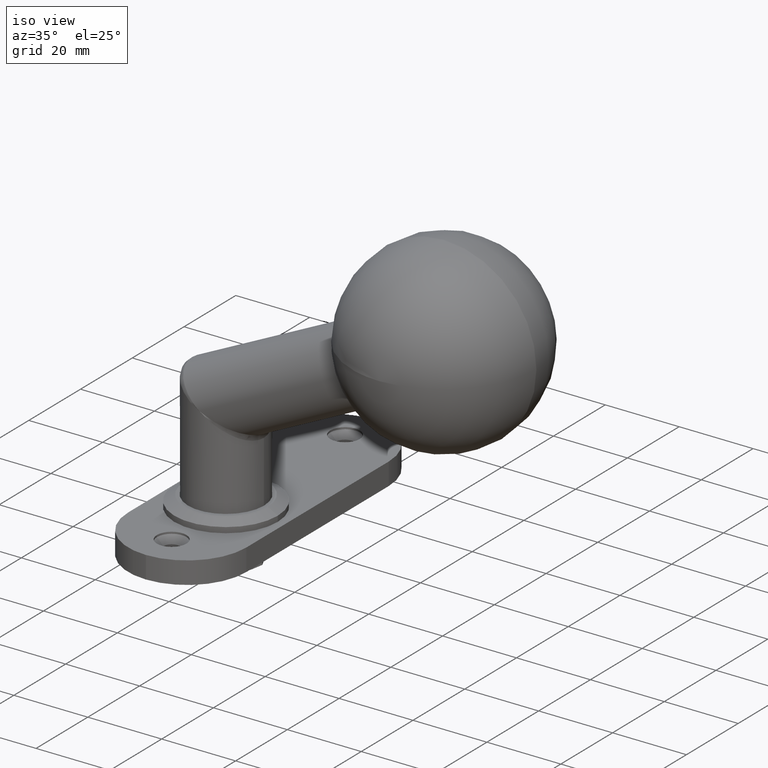
[diagram: clean part render]
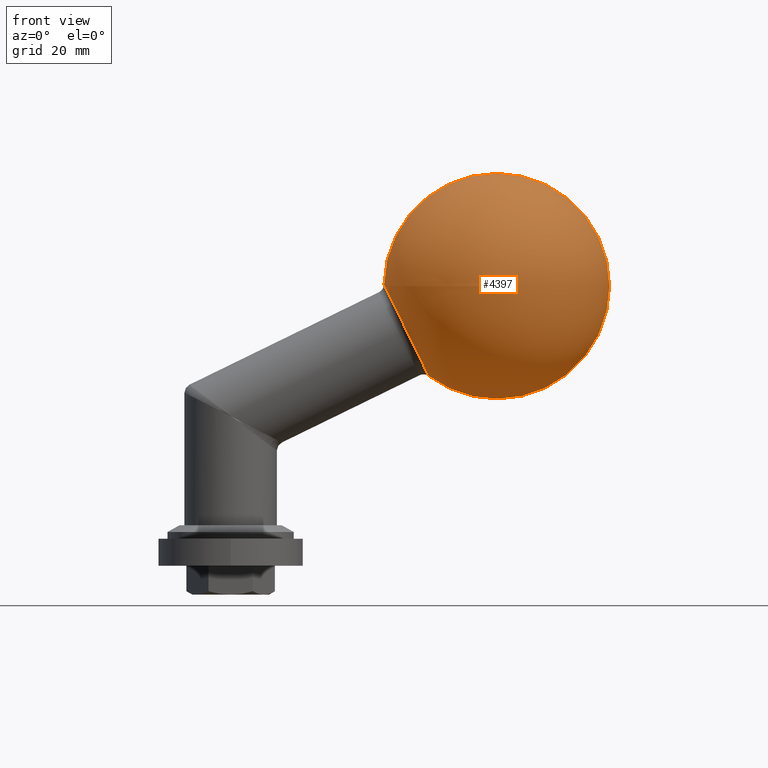
[diagram: tour spotlight — one face highlighted and labeled with its STEP entity id]
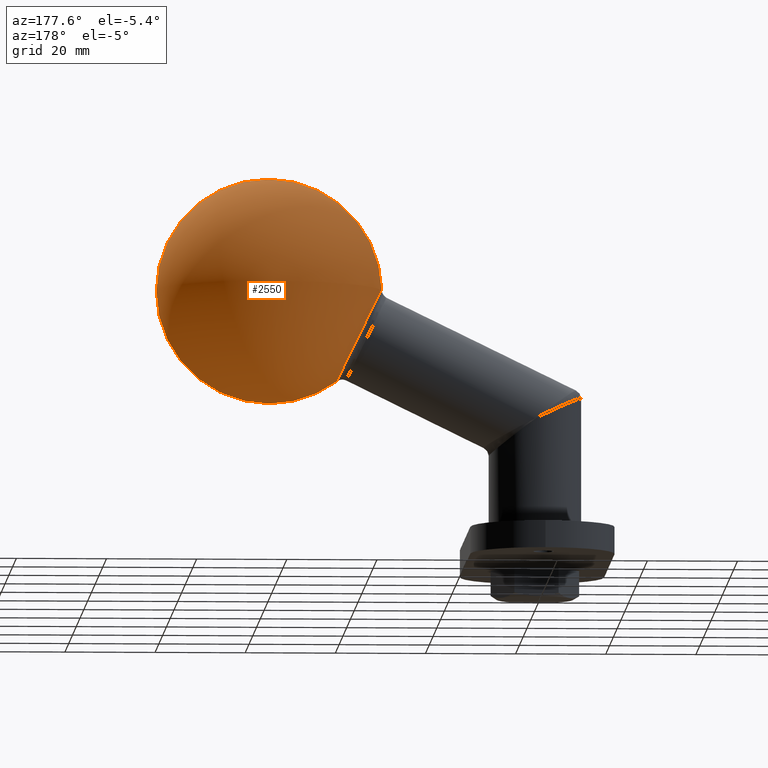
[diagram: tour spotlight — one face highlighted and labeled with its STEP entity id]
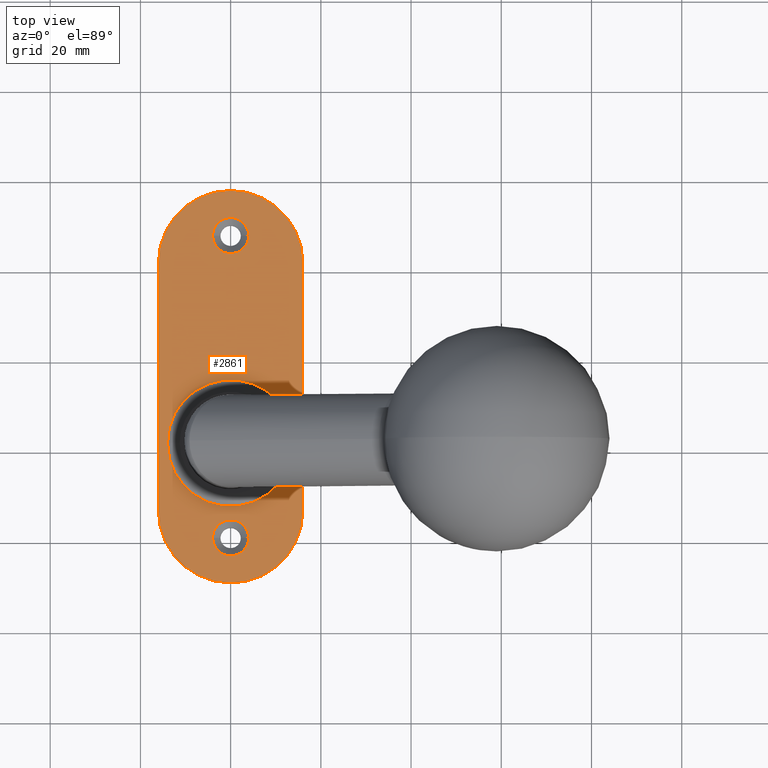
[diagram: tour spotlight — one face highlighted and labeled with its STEP entity id]
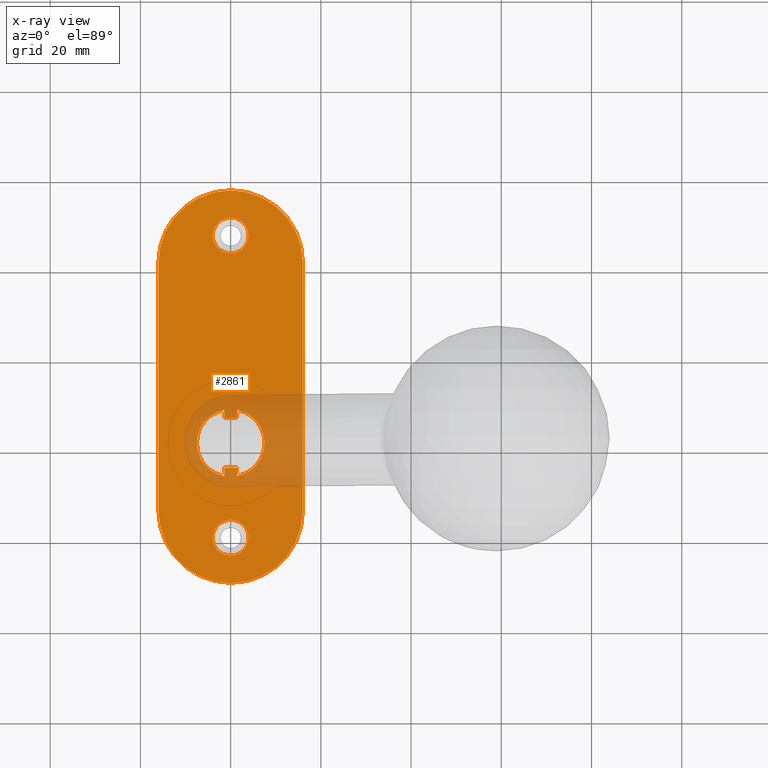
[diagram: x-ray of the same camera — body ghosted, this tour face saturated]
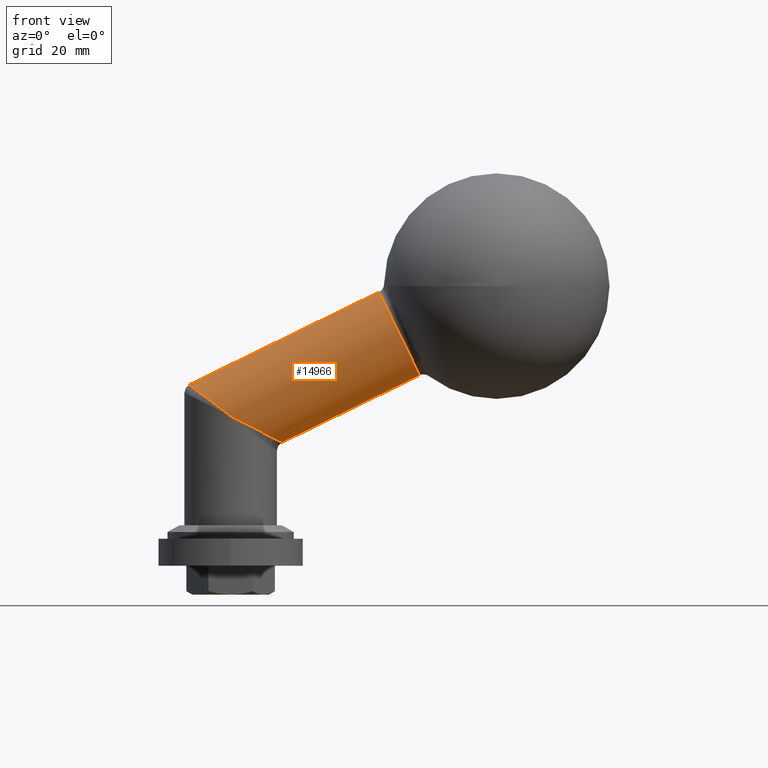
[diagram: tour spotlight — one face highlighted and labeled with its STEP entity id]
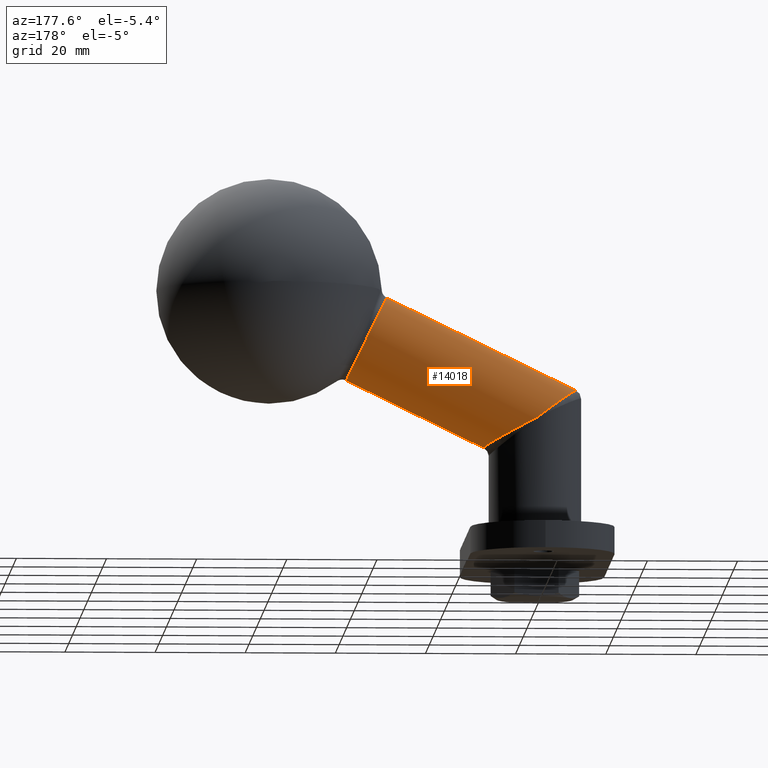
[diagram: tour spotlight — one face highlighted and labeled with its STEP entity id]
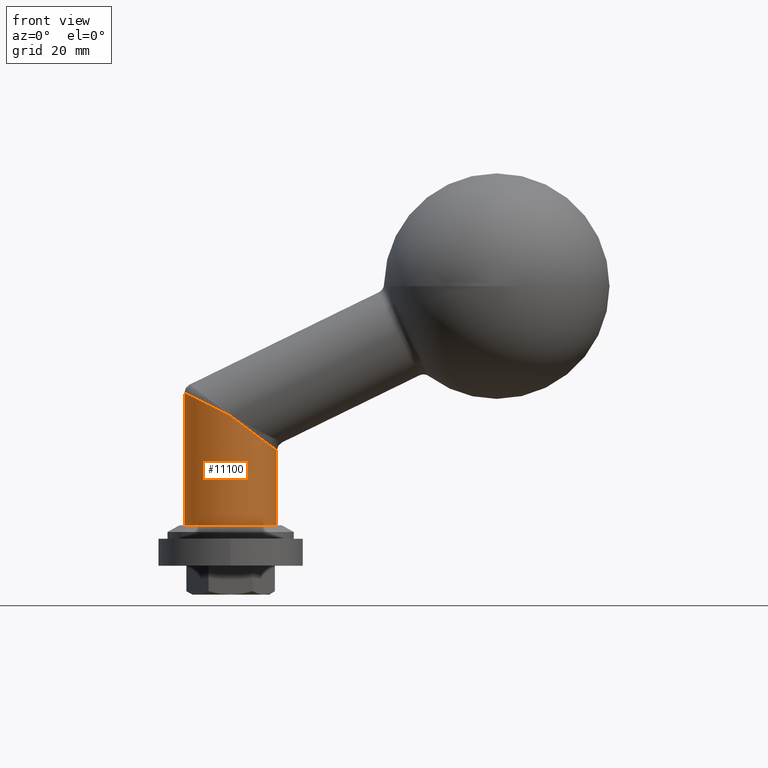
[diagram: tour spotlight — one face highlighted and labeled with its STEP entity id]
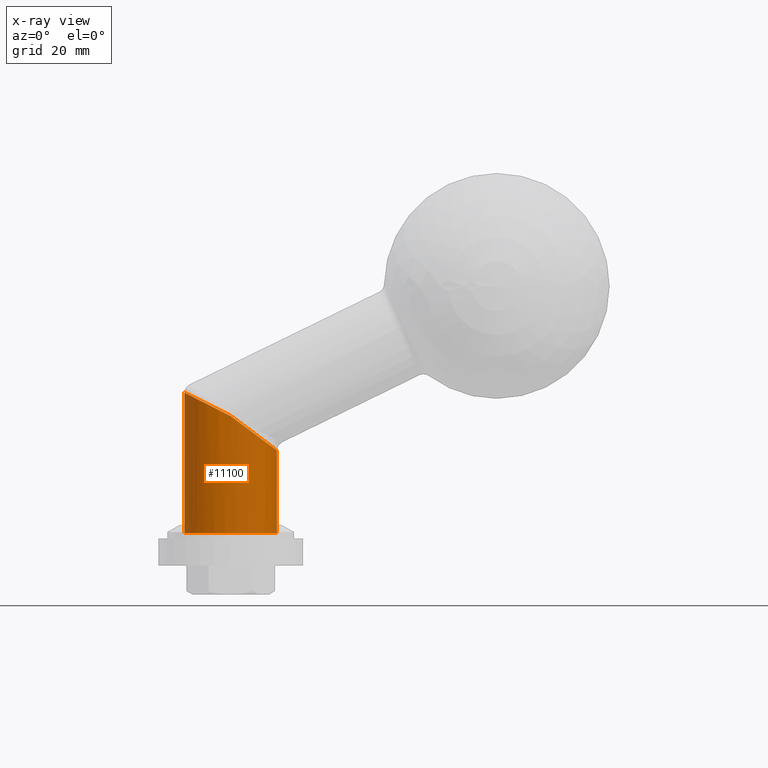
[diagram: x-ray of the same camera — body ghosted, this tour face saturated]
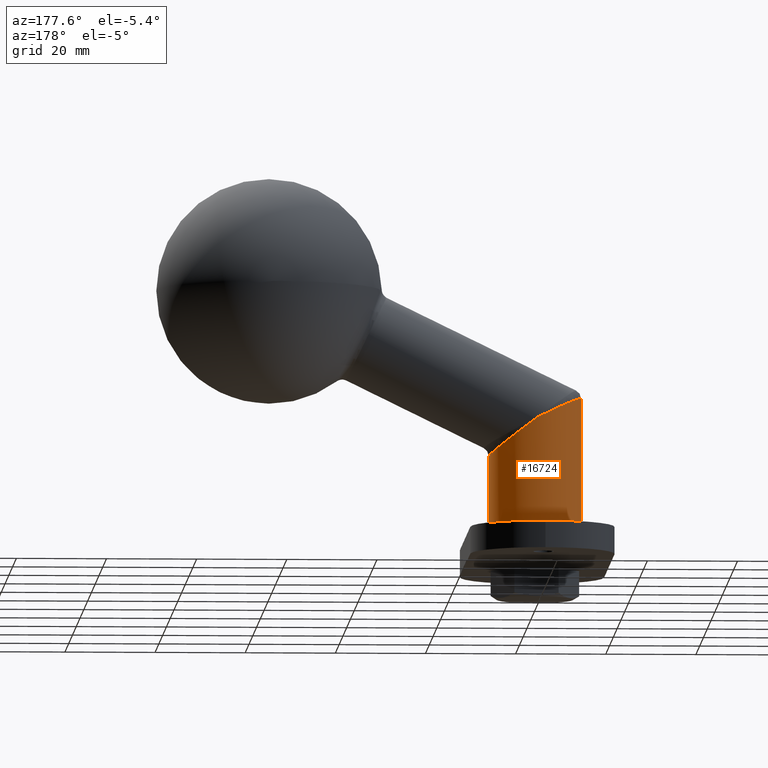
[diagram: tour spotlight — one face highlighted and labeled with its STEP entity id]
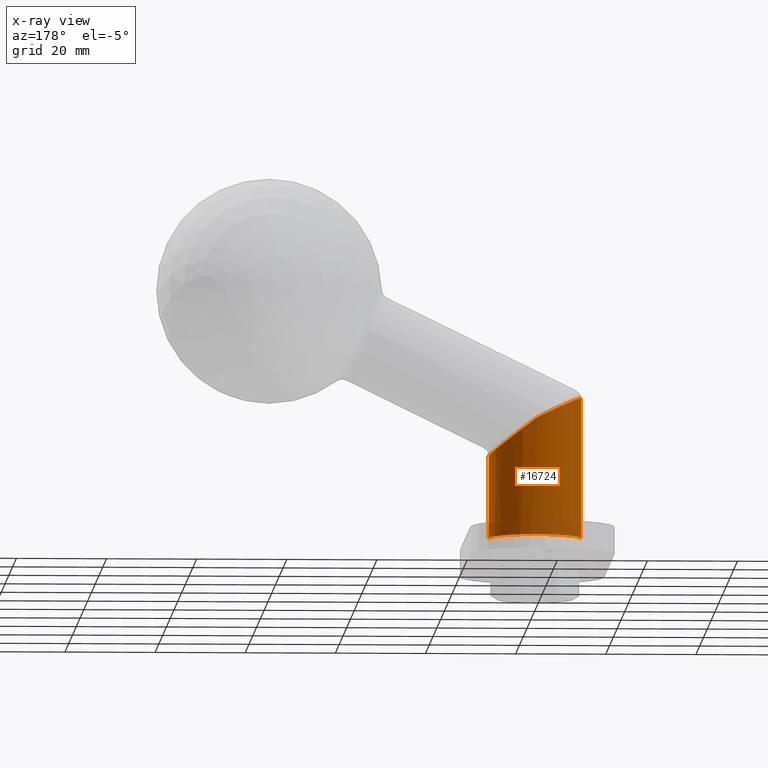
[diagram: x-ray of the same camera — body ghosted, this tour face saturated]
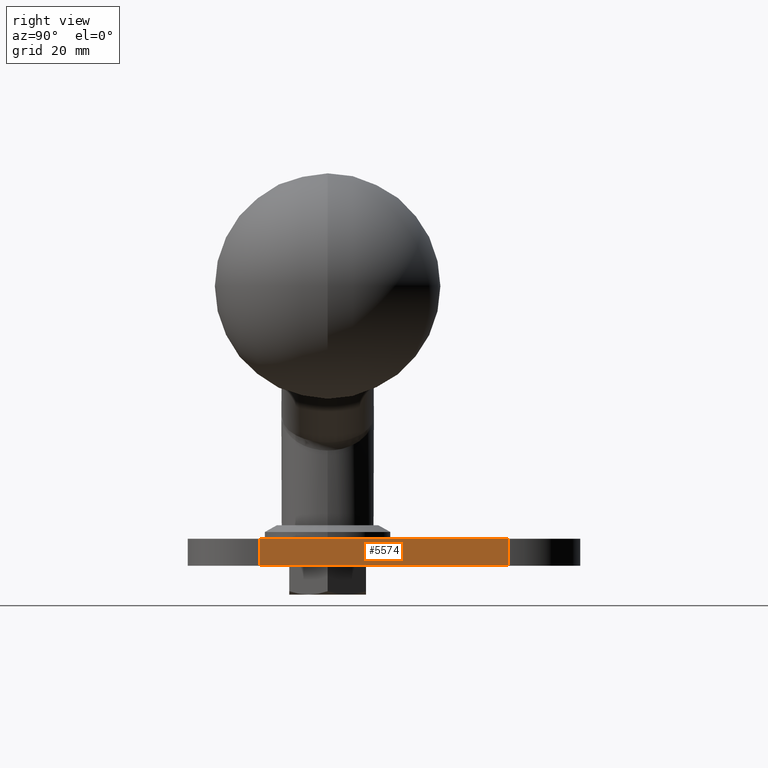
[diagram: tour spotlight — one face highlighted and labeled with its STEP entity id]
A machine part: a face-by-face anatomy tour. The part has 350 B-rep faces; the first image is the clean iso view, then the 8 largest visible faces are spotlighted one at a time (largest first), each with its STEP entity span.

Face 1 — front view, entity #4397. In plain terms, the highlighted spherical surface has radius 25 mm.
Definition (entity closure, byte-faithful):
#194 = CIRCLE ( 'NONE', #13611, 24.99999999999998579 ) ;
#1112 = CARTESIAN_POINT ( 'NONE',  ( 59.00000000000000711, 0.000000000000000000, 54.79999999999999716 ) ) ;
#1230 = DIRECTION ( 'NONE',  ( 0.000000000000000000, 1.000000000000000000, 0.000000000000000000 ) ) ;
#1425 = AXIS2_PLACEMENT_3D ( 'NONE', #7741, #4943, #11394 ) ;
#1689 = DIRECTION ( 'NONE',  ( 0.000000000000000000, 0.000000000000000000, 1.000000000000000000 ) ) ;
#1690 = FACE_OUTER_BOUND ( 'NONE', #11851, .T. ) ;
#2111 = SPHERICAL_SURFACE ( 'NONE', #1425, 24.99999999999998579 ) ;
#2964 = ORIENTED_EDGE ( 'NONE', *, *, #7785, .T. ) ;
#3845 = EDGE_CURVE ( 'NONE', #15773, #10940, #6040, .T. ) ;
#4173 = AXIS2_PLACEMENT_3D ( 'NONE', #6341, #14240, #7668 ) ;
#4244 = VERTEX_POINT ( 'NONE', #10042 ) ;
#4373 = CARTESIAN_POINT ( 'NONE',  ( 59.00000000000000711, 0.000000000000000000, 29.80000000000000782 ) ) ;
#4397 = ADVANCED_FACE ( 'NONE', ( #1690 ), #2111, .T. ) ;
#4663 = ORIENTED_EDGE ( 'NONE', *, *, #3845, .F. ) ;
#4943 = DIRECTION ( 'NONE',  ( -0.000000000000000000, -1.000000000000000000, 0.000000000000000000 ) ) ;
#5289 = CIRCLE ( 'NONE', #4173, 11.34259259259259878 ) ;
#5543 = DIRECTION ( 'NONE',  ( 0.000000000000000000, 1.000000000000000000, 0.000000000000000000 ) ) ;
#5580 = DIRECTION ( 'NONE',  ( 1.000000000000000000, -1.224646799147353207E-16, 0.000000000000000000 ) ) ;
#5654 = CARTESIAN_POINT ( 'NONE',  ( 43.95469740697900818, 0.000000000000000000, 34.83405725029655287 ) ) ;
#6040 = CIRCLE ( 'NONE', #8715, 24.99999999999998579 ) ;
#6341 = CARTESIAN_POINT ( 'NONE',  ( 38.97911390795321296, 0.000000000000000000, 45.02709289066191189 ) ) ;
#7134 = CIRCLE ( 'NONE', #11898, 24.99999999999998579 ) ;
#7668 = DIRECTION ( 'NONE',  ( 0.4386636880773769342, 0.000000000000000000, -0.8986513054362931241 ) ) ;
#7741 = CARTESIAN_POINT ( 'NONE',  ( 59.00000000000000711, 0.000000000000000000, 54.79999999999999716 ) ) ;
#7785 = EDGE_CURVE ( 'NONE', #16257, #10940, #5289, .T. ) ;
#8715 = AXIS2_PLACEMENT_3D ( 'NONE', #12260, #5543, #1689 ) ;
#9639 = CARTESIAN_POINT ( 'NONE',  ( 59.00000000000000711, 0.000000000000000000, 54.79999999999999716 ) ) ;
#10042 = CARTESIAN_POINT ( 'NONE',  ( 59.00000000000000711, 0.000000000000000000, 79.79999999999998295 ) ) ;
#10244 = ORIENTED_EDGE ( 'NONE', *, *, #14664, .F. ) ;
#10327 = DIRECTION ( 'NONE',  ( 0.000000000000000000, 0.000000000000000000, 1.000000000000000000 ) ) ;
#10716 = DIRECTION ( 'NONE',  ( -1.224646799147353207E-16, -1.000000000000000000, -0.000000000000000000 ) ) ;
#10940 = VERTEX_POINT ( 'NONE', #5654 ) ;
#11023 = EDGE_CURVE ( 'NONE', #15773, #4244, #194, .T. ) ;
#11394 = DIRECTION ( 'NONE',  ( -1.000000000000000000, 0.000000000000000000, 0.000000000000000000 ) ) ;
#11851 = EDGE_LOOP ( 'NONE', ( #4663, #16239, #10244, #2964 ) ) ;
#11898 = AXIS2_PLACEMENT_3D ( 'NONE', #1112, #1230, #10327 ) ;
#12260 = CARTESIAN_POINT ( 'NONE',  ( 59.00000000000000711, 0.000000000000000000, 54.79999999999999716 ) ) ;
#13611 = AXIS2_PLACEMENT_3D ( 'NONE', #9639, #10716, #5580 ) ;
#14240 = DIRECTION ( 'NONE',  ( 0.8986513054362933461, -0.000000000000000000, 0.4386636880773767677 ) ) ;
#14664 = EDGE_CURVE ( 'NONE', #16257, #4244, #7134, .T. ) ;
#14748 = CARTESIAN_POINT ( 'NONE',  ( 34.00353040892741774, 0.000000000000000000, 55.22012853102725671 ) ) ;
#15773 = VERTEX_POINT ( 'NONE', #4373 ) ;
#16239 = ORIENTED_EDGE ( 'NONE', *, *, #11023, .T. ) ;
#16257 = VERTEX_POINT ( 'NONE', #14748 ) ;

Face 2 — auxiliary view, entity #2550. In plain terms, the highlighted spherical surface has radius 25 mm.
Definition (entity closure, byte-faithful):
#179 = DIRECTION ( 'NONE',  ( 0.8986513054362933461, -0.000000000000000000, 0.4386636880773767677 ) ) ;
#194 = CIRCLE ( 'NONE', #13611, 24.99999999999998579 ) ;
#1112 = CARTESIAN_POINT ( 'NONE',  ( 59.00000000000000711, 0.000000000000000000, 54.79999999999999716 ) ) ;
#1230 = DIRECTION ( 'NONE',  ( 0.000000000000000000, 1.000000000000000000, 0.000000000000000000 ) ) ;
#1522 = DIRECTION ( 'NONE',  ( -0.000000000000000000, -1.000000000000000000, 0.000000000000000000 ) ) ;
#1689 = DIRECTION ( 'NONE',  ( 0.000000000000000000, 0.000000000000000000, 1.000000000000000000 ) ) ;
#2550 = ADVANCED_FACE ( 'NONE', ( #14632 ), #2594, .T. ) ;
#2594 = SPHERICAL_SURFACE ( 'NONE', #9226, 24.99999999999998579 ) ;
#2758 = EDGE_LOOP ( 'NONE', ( #16451, #10847, #5690, #3062 ) ) ;
#3062 = ORIENTED_EDGE ( 'NONE', *, *, #14664, .T. ) ;
#3845 = EDGE_CURVE ( 'NONE', #15773, #10940, #6040, .T. ) ;
#4244 = VERTEX_POINT ( 'NONE', #10042 ) ;
#4373 = CARTESIAN_POINT ( 'NONE',  ( 59.00000000000000711, 0.000000000000000000, 29.80000000000000782 ) ) ;
#5543 = DIRECTION ( 'NONE',  ( 0.000000000000000000, 1.000000000000000000, 0.000000000000000000 ) ) ;
#5580 = DIRECTION ( 'NONE',  ( 1.000000000000000000, -1.224646799147353207E-16, 0.000000000000000000 ) ) ;
#5654 = CARTESIAN_POINT ( 'NONE',  ( 43.95469740697900818, 0.000000000000000000, 34.83405725029655287 ) ) ;
#5690 = ORIENTED_EDGE ( 'NONE', *, *, #11386, .T. ) ;
#6040 = CIRCLE ( 'NONE', #8715, 24.99999999999998579 ) ;
#6630 = DIRECTION ( 'NONE',  ( -1.000000000000000000, 0.000000000000000000, 0.000000000000000000 ) ) ;
#7134 = CIRCLE ( 'NONE', #11898, 24.99999999999998579 ) ;
#7985 = CARTESIAN_POINT ( 'NONE',  ( 38.97911390795321296, 0.000000000000000000, 45.02709289066191189 ) ) ;
#8715 = AXIS2_PLACEMENT_3D ( 'NONE', #12260, #5543, #1689 ) ;
#9226 = AXIS2_PLACEMENT_3D ( 'NONE', #9302, #1522, #6630 ) ;
#9302 = CARTESIAN_POINT ( 'NONE',  ( 59.00000000000000711, 0.000000000000000000, 54.79999999999999716 ) ) ;
#9639 = CARTESIAN_POINT ( 'NONE',  ( 59.00000000000000711, 0.000000000000000000, 54.79999999999999716 ) ) ;
#9748 = CIRCLE ( 'NONE', #16659, 11.34259259259259878 ) ;
#10042 = CARTESIAN_POINT ( 'NONE',  ( 59.00000000000000711, 0.000000000000000000, 79.79999999999998295 ) ) ;
#10327 = DIRECTION ( 'NONE',  ( 0.000000000000000000, 0.000000000000000000, 1.000000000000000000 ) ) ;
#10599 = DIRECTION ( 'NONE',  ( 0.4386636880773769342, 0.000000000000000000, -0.8986513054362931241 ) ) ;
#10716 = DIRECTION ( 'NONE',  ( -1.224646799147353207E-16, -1.000000000000000000, -0.000000000000000000 ) ) ;
#10847 = ORIENTED_EDGE ( 'NONE', *, *, #3845, .T. ) ;
#10940 = VERTEX_POINT ( 'NONE', #5654 ) ;
#11023 = EDGE_CURVE ( 'NONE', #15773, #4244, #194, .T. ) ;
#11386 = EDGE_CURVE ( 'NONE', #10940, #16257, #9748, .T. ) ;
#11898 = AXIS2_PLACEMENT_3D ( 'NONE', #1112, #1230, #10327 ) ;
#12260 = CARTESIAN_POINT ( 'NONE',  ( 59.00000000000000711, 0.000000000000000000, 54.79999999999999716 ) ) ;
#13611 = AXIS2_PLACEMENT_3D ( 'NONE', #9639, #10716, #5580 ) ;
#14632 = FACE_OUTER_BOUND ( 'NONE', #2758, .T. ) ;
#14664 = EDGE_CURVE ( 'NONE', #16257, #4244, #7134, .T. ) ;
#14748 = CARTESIAN_POINT ( 'NONE',  ( 34.00353040892741774, 0.000000000000000000, 55.22012853102725671 ) ) ;
#15773 = VERTEX_POINT ( 'NONE', #4373 ) ;
#16257 = VERTEX_POINT ( 'NONE', #14748 ) ;
#16451 = ORIENTED_EDGE ( 'NONE', *, *, #11023, .F. ) ;
#16659 = AXIS2_PLACEMENT_3D ( 'NONE', #7985, #179, #10599 ) ;

Face 3 — top view, entity #2861. An x-ray twin of the same camera follows (body ghosted, this face saturated) — the face is partly hidden behind the body. In plain terms, the highlighted planar face has unit normal (0, 0, 1).
Definition (entity closure, byte-faithful):
#19 = VERTEX_POINT ( 'NONE', #13959 ) ;
#133 = VERTEX_POINT ( 'NONE', #1330 ) ;
#301 = EDGE_CURVE ( 'NONE', #9153, #1197, #15295, .T. ) ;
#328 = CARTESIAN_POINT ( 'NONE',  ( -8.629137290756425438E-15, 62.00000000000000000, 6.000000000000000000 ) ) ;
#344 = CARTESIAN_POINT ( 'NONE',  ( -1.399999999999999023, 16.50000000000000711, 6.000000000000000000 ) ) ;
#347 = CARTESIAN_POINT ( 'NONE',  ( 3.469446951953614189E-15, 7.000000000000006217, 6.000000000000000000 ) ) ;
#569 = CIRCLE ( 'NONE', #7746, 16.00000000000000000 ) ;
#936 = AXIS2_PLACEMENT_3D ( 'NONE', #6383, #5144, #14224 ) ;
#1023 = VERTEX_POINT ( 'NONE', #4750 ) ;
#1066 = CIRCLE ( 'NONE', #12420, 7.500000000000000000 ) ;
#1084 = EDGE_CURVE ( 'NONE', #19, #15976, #13251, .T. ) ;
#1197 = VERTEX_POINT ( 'NONE', #7696 ) ;
#1314 = ORIENTED_EDGE ( 'NONE', *, *, #10482, .T. ) ;
#1330 = CARTESIAN_POINT ( 'NONE',  ( -4.000000000000000000, 1.000000000000001332, 6.000000000000000000 ) ) ;
#1346 = DIRECTION ( 'NONE',  ( -0.000000000000000000, 0.000000000000000000, 1.000000000000000000 ) ) ;
#1585 = DIRECTION ( 'NONE',  ( -0.000000000000000000, 0.000000000000000000, 1.000000000000000000 ) ) ;
#1680 = CARTESIAN_POINT ( 'NONE',  ( 0.000000000000000000, 1.000000000000000888, 6.000000000000000000 ) ) ;
#1737 = VECTOR ( 'NONE', #6177, 1000.000000000000000 ) ;
#1786 = CIRCLE ( 'NONE', #7155, 16.00000000000000000 ) ;
#1809 = CARTESIAN_POINT ( 'NONE',  ( -2.513125035709990180E-15, 7.000000000000006217, 6.000000000000000000 ) ) ;
#1861 = CARTESIAN_POINT ( 'NONE',  ( -16.00000000000001066, 78.00000000000000000, 6.000000000000000000 ) ) ;
#1963 = CARTESIAN_POINT ( 'NONE',  ( 0.000000000000000000, 0.000000000000000000, 6.000000000000000000 ) ) ;
#2042 = DIRECTION ( 'NONE',  ( -0.000000000000000000, -0.000000000000000000, 1.000000000000000000 ) ) ;
#2331 = EDGE_CURVE ( 'NONE', #2663, #3410, #3003, .T. ) ;
#2503 = AXIS2_PLACEMENT_3D ( 'NONE', #1963, #11093, #13726 ) ;
#2575 = LINE ( 'NONE', #13974, #1737 ) ;
#2631 = CARTESIAN_POINT ( 'NONE',  ( -6.938893903907228378E-15, 78.00000000000000000, 6.000000000000000000 ) ) ;
#2663 = VERTEX_POINT ( 'NONE', #10561 ) ;
#2727 = EDGE_CURVE ( 'NONE', #16777, #133, #10943, .T. ) ;
#2861 = ADVANCED_FACE ( 'NONE', ( #16454, #8686, #14430, #7697 ), #4591, .T. ) ;
#2991 = AXIS2_PLACEMENT_3D ( 'NONE', #9192, #1346, #11742 ) ;
#3003 = LINE ( 'NONE', #14662, #11797 ) ;
#3041 = VECTOR ( 'NONE', #13302, 1000.000000000000000 ) ;
#3088 = DIRECTION ( 'NONE',  ( 1.000000000000000000, 0.000000000000000000, 0.000000000000000000 ) ) ;
#3238 = ORIENTED_EDGE ( 'NONE', *, *, #6204, .F. ) ;
#3410 = VERTEX_POINT ( 'NONE', #12377 ) ;
#3417 = ORIENTED_EDGE ( 'NONE', *, *, #1084, .F. ) ;
#3511 = VERTEX_POINT ( 'NONE', #12893 ) ;
#3675 = ORIENTED_EDGE ( 'NONE', *, *, #15546, .T. ) ;
#3773 = DIRECTION ( 'NONE',  ( 1.000000000000000000, 0.000000000000000000, 0.000000000000000000 ) ) ;
#4317 = DIRECTION ( 'NONE',  ( 1.000000000000000000, 0.000000000000000000, 0.000000000000000000 ) ) ;
#4323 = CIRCLE ( 'NONE', #2991, 16.00000000000000000 ) ;
#4396 = CIRCLE ( 'NONE', #14097, 4.000000000000000000 ) ;
#4404 = CARTESIAN_POINT ( 'NONE',  ( -4.000000000000000000, 68.00000000000000000, 6.000000000000000000 ) ) ;
#4476 = CARTESIAN_POINT ( 'NONE',  ( 1.400000000000000577, 16.50000000000000711, 6.000000000000000000 ) ) ;
#4482 = VECTOR ( 'NONE', #13601, 1000.000000000000000 ) ;
#4554 = CARTESIAN_POINT ( 'NONE',  ( -16.00000000000000711, 62.00000000000000000, 6.000000000000000000 ) ) ;
#4591 = PLANE ( 'NONE',  #2503 ) ;
#4687 = CARTESIAN_POINT ( 'NONE',  ( 15.99999999999998934, 78.00000000000000000, 6.000000000000000000 ) ) ;
#4750 = CARTESIAN_POINT ( 'NONE',  ( 1.400000000000000577, 16.50000000000000711, 6.000000000000000000 ) ) ;
#4884 = DIRECTION ( 'NONE',  ( 1.000000000000000000, 0.000000000000000000, 0.000000000000000000 ) ) ;
#5055 = VERTEX_POINT ( 'NONE', #4554 ) ;
#5144 = DIRECTION ( 'NONE',  ( -0.000000000000000000, -0.000000000000000000, 1.000000000000000000 ) ) ;
#5298 = VERTEX_POINT ( 'NONE', #14145 ) ;
#5417 = DIRECTION ( 'NONE',  ( 1.000000000000000000, 0.000000000000000000, 0.000000000000000000 ) ) ;
#5425 = EDGE_CURVE ( 'NONE', #5427, #8310, #4323, .T. ) ;
#5427 = VERTEX_POINT ( 'NONE', #6576 ) ;
#5436 = ORIENTED_EDGE ( 'NONE', *, *, #5768, .F. ) ;
#5627 = AXIS2_PLACEMENT_3D ( 'NONE', #1680, #8219, #5417 ) ;
#5632 = ORIENTED_EDGE ( 'NONE', *, *, #13555, .T. ) ;
#5768 = EDGE_CURVE ( 'NONE', #5298, #1197, #1066, .T. ) ;
#6126 = DIRECTION ( 'NONE',  ( 0.000000000000000000, 0.000000000000000000, 1.000000000000000000 ) ) ;
#6177 = DIRECTION ( 'NONE',  ( 1.160707411203426691E-16, 1.000000000000000000, 0.000000000000000000 ) ) ;
#6204 = EDGE_CURVE ( 'NONE', #10711, #11024, #8991, .T. ) ;
#6220 = ORIENTED_EDGE ( 'NONE', *, *, #14228, .F. ) ;
#6383 = CARTESIAN_POINT ( 'NONE',  ( 0.000000000000000000, 68.00000000000000000, 6.000000000000000000 ) ) ;
#6486 = CARTESIAN_POINT ( 'NONE',  ( 1.399999999999999023, 27.50000000000000355, 6.000000000000000000 ) ) ;
#6576 = CARTESIAN_POINT ( 'NONE',  ( 15.99999999999999289, 62.00000000000000000, 6.000000000000000000 ) ) ;
#6647 = EDGE_CURVE ( 'NONE', #10151, #5427, #10005, .T. ) ;
#6715 = ORIENTED_EDGE ( 'NONE', *, *, #9631, .T. ) ;
#6862 = DIRECTION ( 'NONE',  ( 1.000000000000000000, 0.000000000000000000, 0.000000000000000000 ) ) ;
#7155 = AXIS2_PLACEMENT_3D ( 'NONE', #328, #1585, #6862 ) ;
#7157 = ORIENTED_EDGE ( 'NONE', *, *, #5425, .T. ) ;
#7353 = DIRECTION ( 'NONE',  ( 1.160707411203426691E-16, -1.000000000000000000, 0.000000000000000000 ) ) ;
#7696 = CARTESIAN_POINT ( 'NONE',  ( -1.400000000000003464, 14.63182519208454302, 6.000000000000000000 ) ) ;
#7697 = FACE_BOUND ( 'NONE', #15123, .T. ) ;
#7746 = AXIS2_PLACEMENT_3D ( 'NONE', #347, #9568, #3088 ) ;
#7894 = LINE ( 'NONE', #344, #16033 ) ;
#8088 = DIRECTION ( 'NONE',  ( 1.000000000000000000, 0.000000000000000000, 0.000000000000000000 ) ) ;
#8219 = DIRECTION ( 'NONE',  ( -0.000000000000000000, -0.000000000000000000, 1.000000000000000000 ) ) ;
#8310 = VERTEX_POINT ( 'NONE', #2631 ) ;
#8312 = ORIENTED_EDGE ( 'NONE', *, *, #15947, .F. ) ;
#8350 = VERTEX_POINT ( 'NONE', #6486 ) ;
#8435 = CARTESIAN_POINT ( 'NONE',  ( 4.000000000000000000, 1.000000000000000888, 6.000000000000000000 ) ) ;
#8686 = FACE_BOUND ( 'NONE', #12280, .T. ) ;
#8753 = ORIENTED_EDGE ( 'NONE', *, *, #13686, .T. ) ;
#8991 = CIRCLE ( 'NONE', #936, 4.000000000000000000 ) ;
#9035 = DIRECTION ( 'NONE',  ( 1.000000000000000000, 0.000000000000000000, 0.000000000000000000 ) ) ;
#9050 = CARTESIAN_POINT ( 'NONE',  ( -1.400000000000000799, 27.50000000000000355, 6.000000000000000000 ) ) ;
#9153 = VERTEX_POINT ( 'NONE', #11617 ) ;
#9192 = CARTESIAN_POINT ( 'NONE',  ( -6.938893903907228378E-15, 62.00000000000000000, 6.000000000000000000 ) ) ;
#9260 = ORIENTED_EDGE ( 'NONE', *, *, #301, .T. ) ;
#9438 = DIRECTION ( 'NONE',  ( -1.000000000000000000, -0.000000000000000000, -0.000000000000000000 ) ) ;
#9453 = EDGE_LOOP ( 'NONE', ( #7157, #6715, #9685, #3675, #12698, #12792 ) ) ;
#9464 = CIRCLE ( 'NONE', #16017, 4.000000000000000000 ) ;
#9568 = DIRECTION ( 'NONE',  ( -0.000000000000000000, 0.000000000000000000, 1.000000000000000000 ) ) ;
#9631 = EDGE_CURVE ( 'NONE', #8310, #5055, #1786, .T. ) ;
#9683 = VECTOR ( 'NONE', #10861, 1000.000000000000000 ) ;
#9685 = ORIENTED_EDGE ( 'NONE', *, *, #16276, .T. ) ;
#9841 = CARTESIAN_POINT ( 'NONE',  ( 0.000000000000000000, 1.000000000000000888, 6.000000000000000000 ) ) ;
#10005 = LINE ( 'NONE', #4687, #14121 ) ;
#10151 = VERTEX_POINT ( 'NONE', #14415 ) ;
#10365 = CARTESIAN_POINT ( 'NONE',  ( 0.000000000000000000, 22.00000000000000355, 6.000000000000000000 ) ) ;
#10482 = EDGE_CURVE ( 'NONE', #19, #1023, #11428, .T. ) ;
#10530 = VECTOR ( 'NONE', #3773, 1000.000000000000000 ) ;
#10561 = CARTESIAN_POINT ( 'NONE',  ( -1.400000000000001021, 29.36817480791546231, 6.000000000000000000 ) ) ;
#10571 = DIRECTION ( 'NONE',  ( 0.000000000000000000, 0.000000000000000000, 1.000000000000000000 ) ) ;
#10696 = LINE ( 'NONE', #1861, #9683 ) ;
#10711 = VERTEX_POINT ( 'NONE', #16202 ) ;
#10861 = DIRECTION ( 'NONE',  ( 1.112002228190260952E-16, -1.000000000000000000, 0.000000000000000000 ) ) ;
#10869 = ORIENTED_EDGE ( 'NONE', *, *, #16164, .T. ) ;
#10943 = CIRCLE ( 'NONE', #5627, 4.000000000000000000 ) ;
#11024 = VERTEX_POINT ( 'NONE', #4404 ) ;
#11093 = DIRECTION ( 'NONE',  ( -0.000000000000000000, 0.000000000000000000, 1.000000000000000000 ) ) ;
#11156 = DIRECTION ( 'NONE',  ( 1.000000000000000000, 0.000000000000000000, 0.000000000000000000 ) ) ;
#11178 = ORIENTED_EDGE ( 'NONE', *, *, #16706, .F. ) ;
#11219 = CARTESIAN_POINT ( 'NONE',  ( 1.399999999999999023, 29.36817480791546231, 6.000000000000000000 ) ) ;
#11428 = LINE ( 'NONE', #4476, #4482 ) ;
#11617 = CARTESIAN_POINT ( 'NONE',  ( -1.399999999999999023, 16.50000000000000711, 6.000000000000000000 ) ) ;
#11742 = DIRECTION ( 'NONE',  ( 1.000000000000000000, 0.000000000000000000, 0.000000000000000000 ) ) ;
#11788 = LINE ( 'NONE', #9050, #10530 ) ;
#11796 = ORIENTED_EDGE ( 'NONE', *, *, #2727, .F. ) ;
#11797 = VECTOR ( 'NONE', #7353, 1000.000000000000000 ) ;
#11939 = CARTESIAN_POINT ( 'NONE',  ( -1.400000000000001021, 14.63182519208454302, 6.000000000000000000 ) ) ;
#12280 = EDGE_LOOP ( 'NONE', ( #3238, #11178 ) ) ;
#12377 = CARTESIAN_POINT ( 'NONE',  ( -1.400000000000000799, 27.50000000000000355, 6.000000000000000000 ) ) ;
#12420 = AXIS2_PLACEMENT_3D ( 'NONE', #12714, #6126, #4884 ) ;
#12457 = AXIS2_PLACEMENT_3D ( 'NONE', #1809, #13456, #4317 ) ;
#12601 = CIRCLE ( 'NONE', #15055, 7.500000000000000000 ) ;
#12698 = ORIENTED_EDGE ( 'NONE', *, *, #14992, .T. ) ;
#12714 = CARTESIAN_POINT ( 'NONE',  ( 0.000000000000000000, 22.00000000000000355, 6.000000000000000000 ) ) ;
#12792 = ORIENTED_EDGE ( 'NONE', *, *, #6647, .T. ) ;
#12893 = CARTESIAN_POINT ( 'NONE',  ( 3.469446951953614189E-15, -8.999999999999994671, 6.000000000000000000 ) ) ;
#12951 = DIRECTION ( 'NONE',  ( 0.000000000000000000, 0.000000000000000000, 1.000000000000000000 ) ) ;
#12972 = ORIENTED_EDGE ( 'NONE', *, *, #2331, .T. ) ;
#13251 = CIRCLE ( 'NONE', #14929, 7.500000000000000000 ) ;
#13302 = DIRECTION ( 'NONE',  ( -1.044636670083080029E-15, -1.000000000000000000, -0.000000000000000000 ) ) ;
#13304 = DIRECTION ( 'NONE',  ( -0.000000000000000000, -0.000000000000000000, 1.000000000000000000 ) ) ;
#13456 = DIRECTION ( 'NONE',  ( -0.000000000000000000, 0.000000000000000000, 1.000000000000000000 ) ) ;
#13541 = EDGE_LOOP ( 'NONE', ( #11796, #8312 ) ) ;
#13555 = EDGE_CURVE ( 'NONE', #1023, #9153, #7894, .T. ) ;
#13601 = DIRECTION ( 'NONE',  ( -1.160707411203422254E-15, 1.000000000000000000, -0.000000000000000000 ) ) ;
#13686 = EDGE_CURVE ( 'NONE', #3410, #8350, #11788, .T. ) ;
#13726 = DIRECTION ( 'NONE',  ( 1.000000000000000000, 0.000000000000000000, 0.000000000000000000 ) ) ;
#13808 = DIRECTION ( 'NONE',  ( -1.779203565104417621E-16, 1.000000000000000000, -0.000000000000000000 ) ) ;
#13824 = CIRCLE ( 'NONE', #12457, 16.00000000000000000 ) ;
#13959 = CARTESIAN_POINT ( 'NONE',  ( 1.400000000000002798, 14.63182519208454302, 6.000000000000000000 ) ) ;
#13974 = CARTESIAN_POINT ( 'NONE',  ( 1.399999999999999023, 27.50000000000000355, 6.000000000000000000 ) ) ;
#14057 = VERTEX_POINT ( 'NONE', #16292 ) ;
#14097 = AXIS2_PLACEMENT_3D ( 'NONE', #14564, #13304, #8088 ) ;
#14121 = VECTOR ( 'NONE', #13808, 1000.000000000000000 ) ;
#14145 = CARTESIAN_POINT ( 'NONE',  ( -7.500000000000000000, 22.00000000000000355, 6.000000000000000000 ) ) ;
#14157 = DIRECTION ( 'NONE',  ( 1.000000000000000000, 0.000000000000000000, 0.000000000000000000 ) ) ;
#14224 = DIRECTION ( 'NONE',  ( 1.000000000000000000, 0.000000000000000000, 0.000000000000000000 ) ) ;
#14228 = EDGE_CURVE ( 'NONE', #2663, #5298, #12601, .T. ) ;
#14415 = CARTESIAN_POINT ( 'NONE',  ( 16.00000000000000355, 7.000000000000006217, 6.000000000000000000 ) ) ;
#14430 = FACE_BOUND ( 'NONE', #13541, .T. ) ;
#14564 = CARTESIAN_POINT ( 'NONE',  ( 0.000000000000000000, 68.00000000000000000, 6.000000000000000000 ) ) ;
#14662 = CARTESIAN_POINT ( 'NONE',  ( -1.400000000000001021, 29.36817480791546231, 6.000000000000000000 ) ) ;
#14929 = AXIS2_PLACEMENT_3D ( 'NONE', #10365, #12951, #14157 ) ;
#14992 = EDGE_CURVE ( 'NONE', #3511, #10151, #569, .T. ) ;
#15055 = AXIS2_PLACEMENT_3D ( 'NONE', #15593, #10571, #9035 ) ;
#15123 = EDGE_LOOP ( 'NONE', ( #6220, #12972, #8753, #10869, #3417, #1314, #5632, #9260, #5436 ) ) ;
#15295 = LINE ( 'NONE', #11939, #3041 ) ;
#15546 = EDGE_CURVE ( 'NONE', #14057, #3511, #13824, .T. ) ;
#15593 = CARTESIAN_POINT ( 'NONE',  ( 0.000000000000000000, 22.00000000000000355, 6.000000000000000000 ) ) ;
#15947 = EDGE_CURVE ( 'NONE', #133, #16777, #9464, .T. ) ;
#15976 = VERTEX_POINT ( 'NONE', #11219 ) ;
#16017 = AXIS2_PLACEMENT_3D ( 'NONE', #9841, #2042, #11156 ) ;
#16033 = VECTOR ( 'NONE', #9438, 1000.000000000000000 ) ;
#16164 = EDGE_CURVE ( 'NONE', #8350, #15976, #2575, .T. ) ;
#16202 = CARTESIAN_POINT ( 'NONE',  ( 4.000000000000000000, 68.00000000000000000, 6.000000000000000000 ) ) ;
#16276 = EDGE_CURVE ( 'NONE', #5055, #14057, #10696, .T. ) ;
#16292 = CARTESIAN_POINT ( 'NONE',  ( -16.00000000000000355, 7.000000000000006217, 6.000000000000000000 ) ) ;
#16454 = FACE_OUTER_BOUND ( 'NONE', #9453, .T. ) ;
#16706 = EDGE_CURVE ( 'NONE', #11024, #10711, #4396, .T. ) ;
#16777 = VERTEX_POINT ( 'NONE', #8435 ) ;

Face 4 — front view, entity #14966. In plain terms, the highlighted cylindrical surface (partial cylindrical patch) has radius 10.25 mm, axis along (0.8987, 0, 0.4387).
Definition (entity closure, byte-faithful):
#153 = VERTEX_POINT ( 'NONE', #5249 ) ;
#785 = LINE ( 'NONE', #5918, #8323 ) ;
#1353 = CYLINDRICAL_SURFACE ( 'NONE', #12989, 10.25000000000000355 ) ;
#1823 = ORIENTED_EDGE ( 'NONE', *, *, #4399, .F. ) ;
#2008 = CARTESIAN_POINT ( 'NONE',  ( -1.882894453689055664E-15, -10.25000000000000000, 25.99999999999999645 ) ) ;
#2456 = CARTESIAN_POINT ( 'NONE',  ( 37.37744302058948165, 0.000000000000000000, 44.24526032191486280 ) ) ;
#2554 = ORIENTED_EDGE ( 'NONE', *, *, #5247, .T. ) ;
#3524 = VERTEX_POINT ( 'NONE', #9082 ) ;
#3755 = DIRECTION ( 'NONE',  ( -0.8986513054362933461, 0.000000000000000000, -0.4386636880773767677 ) ) ;
#4399 = EDGE_CURVE ( 'NONE', #3524, #153, #14755, .T. ) ;
#4677 = VERTEX_POINT ( 'NONE', #2008 ) ;
#4728 = VERTEX_POINT ( 'NONE', #6151 ) ;
#4785 = CARTESIAN_POINT ( 'NONE',  ( 41.87374582338259899, 0.000000000000000000, 35.03408444119285292 ) ) ;
#5247 = EDGE_CURVE ( 'NONE', #9938, #153, #13316, .T. ) ;
#5249 = CARTESIAN_POINT ( 'NONE',  ( 32.88114021779637142, 1.255262969126037241E-15, 53.45643620263687268 ) ) ;
#5596 = AXIS2_PLACEMENT_3D ( 'NONE', #2456, #3755, #16744 ) ;
#5918 = CARTESIAN_POINT ( 'NONE',  ( 4.496302802793113784, 0.000000000000000000, 16.78882411927798657 ) ) ;
#6151 = CARTESIAN_POINT ( 'NONE',  ( 11.37267262384525068, 0.000000000000000000, 20.14542498107970658 ) ) ;
#6180 = DIRECTION ( 'NONE',  ( 0.8986513054362931241, 0.000000000000000000, 0.4386636880773768232 ) ) ;
#6189 = CARTESIAN_POINT ( 'NONE',  ( -1.882894453689055664E-15, -10.25000000000000000, 25.99999999999999645 ) ) ;
#6845 = ORIENTED_EDGE ( 'NONE', *, *, #7418, .T. ) ;
#7418 = EDGE_CURVE ( 'NONE', #4677, #4728, #16030, .T. ) ;
#7622 = CARTESIAN_POINT ( 'NONE',  ( -4.496302802793113784, 1.255262969126037241E-15, 35.21117588072200988 ) ) ;
#7704 = CARTESIAN_POINT ( 'NONE',  ( -9.127327376154754646, -6.004310985675773260, 32.95060795338614668 ) ) ;
#7863 = CARTESIAN_POINT ( 'NONE',  ( -5.346664588732220835, -10.24999999999999645, 30.07157187235530316 ) ) ;
#8086 = DIRECTION ( 'NONE',  ( 0.8986513054362931241, 0.000000000000000000, 0.4386636880773768232 ) ) ;
#8323 = VECTOR ( 'NONE', #10081, 1000.000000000000227 ) ;
#9082 = CARTESIAN_POINT ( 'NONE',  ( -9.127327376154759975, 1.255262969126037241E-15, 32.95060795338615378 ) ) ;
#9938 = VERTEX_POINT ( 'NONE', #4785 ) ;
#10081 = DIRECTION ( 'NONE',  ( 0.8986513054362931241, 0.000000000000000000, 0.4386636880773768232 ) ) ;
#10992 = FACE_OUTER_BOUND ( 'NONE', #13637, .T. ) ;
#11591 = CARTESIAN_POINT ( 'NONE',  ( -9.127327376154759975, 1.255262969126037241E-15, 32.95060795338615378 ) ) ;
#11732 = EDGE_CURVE ( 'NONE', #4728, #9938, #785, .T. ) ;
#11810 = ORIENTED_EDGE ( 'NONE', *, *, #11732, .T. ) ;
#12096 = ORIENTED_EDGE ( 'NONE', *, *, #13683, .T. ) ;
#12989 = AXIS2_PLACEMENT_3D ( 'NONE', #14606, #8086, #16068 ) ;
#13061 = CARTESIAN_POINT ( 'NONE',  ( 6.661957382619331902, -10.25000000000000178, 22.57046935584721226 ) ) ;
#13316 = CIRCLE ( 'NONE', #5596, 10.25000000000000533 ) ;
#13637 = EDGE_LOOP ( 'NONE', ( #1823, #12096, #6845, #11810, #2554 ) ) ;
#13683 = EDGE_CURVE ( 'NONE', #3524, #4677, #14592, .T. ) ;
#14376 = CARTESIAN_POINT ( 'NONE',  ( 11.37267262384525068, 0.000000000000000000, 20.14542498107970658 ) ) ;
#14592 =( BOUNDED_CURVE ( )  B_SPLINE_CURVE ( 3, ( #11591, #7704, #7863, #15665 ),
 .UNSPECIFIED., .F., .F. ) 
 B_SPLINE_CURVE_WITH_KNOTS ( ( 4, 4 ),
 ( 3.141592653589793116, 4.712388980384689674 ),
 .UNSPECIFIED. ) 
 CURVE ( )  GEOMETRIC_REPRESENTATION_ITEM ( )  RATIONAL_B_SPLINE_CURVE ( ( 1.000000000000000000, 0.8047378541243649375, 0.8047378541243649375, 1.000000000000000000 ) ) 
 REPRESENTATION_ITEM ( '' )  );
#14606 = CARTESIAN_POINT ( 'NONE',  ( 0.000000000000000000, 0.000000000000000000, 25.99999999999999645 ) ) ;
#14755 = LINE ( 'NONE', #7622, #16787 ) ;
#14966 = ADVANCED_FACE ( 'NONE', ( #10992 ), #1353, .T. ) ;
#15665 = CARTESIAN_POINT ( 'NONE',  ( -1.882894453689055664E-15, -10.25000000000000000, 25.99999999999999645 ) ) ;
#15807 = CARTESIAN_POINT ( 'NONE',  ( 11.37267262384524358, -6.004310985675775925, 20.14542498107971369 ) ) ;
#16030 =( BOUNDED_CURVE ( )  B_SPLINE_CURVE ( 3, ( #6189, #13061, #15807, #14376 ),
 .UNSPECIFIED., .F., .F. ) 
 B_SPLINE_CURVE_WITH_KNOTS ( ( 4, 4 ),
 ( 4.712388980384689674, 6.283185307179586232 ),
 .UNSPECIFIED. ) 
 CURVE ( )  GEOMETRIC_REPRESENTATION_ITEM ( )  RATIONAL_B_SPLINE_CURVE ( ( 1.000000000000000000, 0.8047378541243649375, 0.8047378541243649375, 1.000000000000000000 ) ) 
 REPRESENTATION_ITEM ( '' )  );
#16068 = DIRECTION ( 'NONE',  ( 0.4386636880773768232, 0.000000000000000000, -0.8986513054362931241 ) ) ;
#16744 = DIRECTION ( 'NONE',  ( 0.4386636880773763791, 0.000000000000000000, -0.8986513054362933461 ) ) ;
#16787 = VECTOR ( 'NONE', #6180, 1000.000000000000227 ) ;

Face 5 — auxiliary view, entity #14018. In plain terms, the highlighted cylindrical surface (partial cylindrical patch) has radius 10.25 mm, axis along (0.8987, 0, 0.4387).
Definition (entity closure, byte-faithful):
#153 = VERTEX_POINT ( 'NONE', #5249 ) ;
#504 = DIRECTION ( 'NONE',  ( 0.8986513054362931241, 0.000000000000000000, 0.4386636880773768232 ) ) ;
#785 = LINE ( 'NONE', #5918, #8323 ) ;
#919 = ORIENTED_EDGE ( 'NONE', *, *, #4399, .T. ) ;
#1046 = CARTESIAN_POINT ( 'NONE',  ( 6.661957382619331902, 10.25000000000000178, 22.57046935584721226 ) ) ;
#1423 = CIRCLE ( 'NONE', #7818, 10.25000000000000533 ) ;
#1974 = CYLINDRICAL_SURFACE ( 'NONE', #14304, 10.25000000000000355 ) ;
#2157 = DIRECTION ( 'NONE',  ( 0.4386636880773768232, 0.000000000000000000, -0.8986513054362931241 ) ) ;
#2159 =( BOUNDED_CURVE ( )  B_SPLINE_CURVE ( 3, ( #7595, #15235, #1046, #15357 ),
 .UNSPECIFIED., .F., .F. ) 
 B_SPLINE_CURVE_WITH_KNOTS ( ( 4, 4 ),
 ( 0.000000000000000000, 1.570796326794896780 ),
 .UNSPECIFIED. ) 
 CURVE ( )  GEOMETRIC_REPRESENTATION_ITEM ( )  RATIONAL_B_SPLINE_CURVE ( ( 1.000000000000000000, 0.8047378541243649375, 0.8047378541243649375, 1.000000000000000000 ) ) 
 REPRESENTATION_ITEM ( '' )  );
#2815 = EDGE_LOOP ( 'NONE', ( #6623, #919, #15558, #6687, #4719 ) ) ;
#3524 = VERTEX_POINT ( 'NONE', #9082 ) ;
#3623 = EDGE_CURVE ( 'NONE', #12800, #3524, #10500, .T. ) ;
#4199 = FACE_OUTER_BOUND ( 'NONE', #2815, .T. ) ;
#4241 = EDGE_CURVE ( 'NONE', #4728, #12800, #2159, .T. ) ;
#4399 = EDGE_CURVE ( 'NONE', #3524, #153, #14755, .T. ) ;
#4719 = ORIENTED_EDGE ( 'NONE', *, *, #4241, .T. ) ;
#4728 = VERTEX_POINT ( 'NONE', #6151 ) ;
#4785 = CARTESIAN_POINT ( 'NONE',  ( 41.87374582338259899, 0.000000000000000000, 35.03408444119285292 ) ) ;
#5028 = CARTESIAN_POINT ( 'NONE',  ( 6.276314845630186204E-16, 10.24999999999999822, 25.99999999999999645 ) ) ;
#5249 = CARTESIAN_POINT ( 'NONE',  ( 32.88114021779637142, 1.255262969126037241E-15, 53.45643620263687268 ) ) ;
#5534 = DIRECTION ( 'NONE',  ( -0.8986513054362933461, 0.000000000000000000, -0.4386636880773767677 ) ) ;
#5918 = CARTESIAN_POINT ( 'NONE',  ( 4.496302802793113784, 0.000000000000000000, 16.78882411927798657 ) ) ;
#6151 = CARTESIAN_POINT ( 'NONE',  ( 11.37267262384525068, 0.000000000000000000, 20.14542498107970658 ) ) ;
#6180 = DIRECTION ( 'NONE',  ( 0.8986513054362931241, 0.000000000000000000, 0.4386636880773768232 ) ) ;
#6623 = ORIENTED_EDGE ( 'NONE', *, *, #3623, .T. ) ;
#6687 = ORIENTED_EDGE ( 'NONE', *, *, #11732, .F. ) ;
#7595 = CARTESIAN_POINT ( 'NONE',  ( 11.37267262384525068, 0.000000000000000000, 20.14542498107970658 ) ) ;
#7622 = CARTESIAN_POINT ( 'NONE',  ( -4.496302802793113784, 1.255262969126037241E-15, 35.21117588072200988 ) ) ;
#7818 = AXIS2_PLACEMENT_3D ( 'NONE', #8107, #5534, #10792 ) ;
#8107 = CARTESIAN_POINT ( 'NONE',  ( 37.37744302058948165, 0.000000000000000000, 44.24526032191486280 ) ) ;
#8323 = VECTOR ( 'NONE', #10081, 1000.000000000000227 ) ;
#9039 = CARTESIAN_POINT ( 'NONE',  ( -9.127327376154759975, 1.255262969126037241E-15, 32.95060795338615378 ) ) ;
#9082 = CARTESIAN_POINT ( 'NONE',  ( -9.127327376154759975, 1.255262969126037241E-15, 32.95060795338615378 ) ) ;
#9938 = VERTEX_POINT ( 'NONE', #4785 ) ;
#10081 = DIRECTION ( 'NONE',  ( 0.8986513054362931241, 0.000000000000000000, 0.4386636880773768232 ) ) ;
#10192 = CARTESIAN_POINT ( 'NONE',  ( -5.346664588732219059, 10.24999999999999645, 30.07157187235529960 ) ) ;
#10293 = EDGE_CURVE ( 'NONE', #153, #9938, #1423, .T. ) ;
#10301 = CARTESIAN_POINT ( 'NONE',  ( -9.127327376154754646, 6.004310985675775036, 32.95060795338614668 ) ) ;
#10500 =( BOUNDED_CURVE ( )  B_SPLINE_CURVE ( 3, ( #12838, #10192, #10301, #9039 ),
 .UNSPECIFIED., .F., .F. ) 
 B_SPLINE_CURVE_WITH_KNOTS ( ( 4, 4 ),
 ( 1.570796326794896780, 3.141592653589793116 ),
 .UNSPECIFIED. ) 
 CURVE ( )  GEOMETRIC_REPRESENTATION_ITEM ( )  RATIONAL_B_SPLINE_CURVE ( ( 1.000000000000000000, 0.8047378541243650485, 0.8047378541243650485, 1.000000000000000000 ) ) 
 REPRESENTATION_ITEM ( '' )  );
#10792 = DIRECTION ( 'NONE',  ( 0.4386636880773763791, 0.000000000000000000, -0.8986513054362933461 ) ) ;
#11732 = EDGE_CURVE ( 'NONE', #4728, #9938, #785, .T. ) ;
#12205 = CARTESIAN_POINT ( 'NONE',  ( 0.000000000000000000, 0.000000000000000000, 25.99999999999999645 ) ) ;
#12800 = VERTEX_POINT ( 'NONE', #5028 ) ;
#12838 = CARTESIAN_POINT ( 'NONE',  ( 6.276314845630186204E-16, 10.24999999999999822, 25.99999999999999645 ) ) ;
#14018 = ADVANCED_FACE ( 'NONE', ( #4199 ), #1974, .T. ) ;
#14304 = AXIS2_PLACEMENT_3D ( 'NONE', #12205, #504, #2157 ) ;
#14755 = LINE ( 'NONE', #7622, #16787 ) ;
#15235 = CARTESIAN_POINT ( 'NONE',  ( 11.37267262384524358, 6.004310985675775925, 20.14542498107971369 ) ) ;
#15357 = CARTESIAN_POINT ( 'NONE',  ( 6.276314845630186204E-16, 10.24999999999999822, 25.99999999999999645 ) ) ;
#15558 = ORIENTED_EDGE ( 'NONE', *, *, #10293, .T. ) ;
#16787 = VECTOR ( 'NONE', #6180, 1000.000000000000227 ) ;

Face 6 — front view, entity #11100. An x-ray twin of the same camera follows (body ghosted, this face saturated) — the face is partly hidden behind the body. In plain terms, the highlighted cylindrical surface (partial cylindrical patch) has radius 10.25 mm, axis along (-0, -0, -1).
Definition (entity closure, byte-faithful):
#764 = DIRECTION ( 'NONE',  ( -0.000000000000000000, -0.000000000000000000, -1.000000000000000000 ) ) ;
#1406 =( BOUNDED_CURVE ( )  B_SPLINE_CURVE ( 3, ( #8239, #1877, #13699, #1932 ),
 .UNSPECIFIED., .F., .F. ) 
 B_SPLINE_CURVE_WITH_KNOTS ( ( 4, 4 ),
 ( 1.570796326794896780, 3.141592653589793116 ),
 .UNSPECIFIED. ) 
 CURVE ( )  GEOMETRIC_REPRESENTATION_ITEM ( )  RATIONAL_B_SPLINE_CURVE ( ( 1.000000000000000000, 0.8047378541243650485, 0.8047378541243650485, 1.000000000000000000 ) ) 
 REPRESENTATION_ITEM ( '' )  );
#1877 = CARTESIAN_POINT ( 'NONE',  ( -6.004310985675777701, -10.24999999999999645, 29.01873637859471344 ) ) ;
#1932 = CARTESIAN_POINT ( 'NONE',  ( -10.25000000000000000, 0.000000000000000000, 31.15330534251356198 ) ) ;
#2008 = CARTESIAN_POINT ( 'NONE',  ( -1.882894453689055664E-15, -10.25000000000000000, 25.99999999999999645 ) ) ;
#2016 = CARTESIAN_POINT ( 'NONE',  ( 10.25000000000000178, -6.004310985675775925, 18.34812237020711834 ) ) ;
#3296 = EDGE_CURVE ( 'NONE', #6114, #4677, #15319, .T. ) ;
#3379 = CARTESIAN_POINT ( 'NONE',  ( -1.882894453689055664E-15, -10.25000000000000000, 25.99999999999999645 ) ) ;
#3549 = CARTESIAN_POINT ( 'NONE',  ( 10.25000000000000000, 1.255262969126037241E-15, 18.34812237020711478 ) ) ;
#3882 = ORIENTED_EDGE ( 'NONE', *, *, #13549, .F. ) ;
#4677 = VERTEX_POINT ( 'NONE', #2008 ) ;
#4843 = VECTOR ( 'NONE', #8084, 1000.000000000000000 ) ;
#5539 = CARTESIAN_POINT ( 'NONE',  ( -10.25000000000000000, 0.000000000000000000, 31.15330534251356198 ) ) ;
#6082 = ORIENTED_EDGE ( 'NONE', *, *, #9058, .T. ) ;
#6114 = VERTEX_POINT ( 'NONE', #7654 ) ;
#7301 = ORIENTED_EDGE ( 'NONE', *, *, #3296, .T. ) ;
#7364 = CARTESIAN_POINT ( 'NONE',  ( 6.004310985675773260, -10.25000000000000178, 21.51763386208662610 ) ) ;
#7481 = DIRECTION ( 'NONE',  ( -0.000000000000000000, -0.000000000000000000, -1.000000000000000000 ) ) ;
#7654 = CARTESIAN_POINT ( 'NONE',  ( 10.25000000000000000, 1.255262969126037241E-15, 18.34812237020711478 ) ) ;
#8084 = DIRECTION ( 'NONE',  ( -0.000000000000000000, -0.000000000000000000, -1.000000000000000000 ) ) ;
#8239 = CARTESIAN_POINT ( 'NONE',  ( -1.882894453689055664E-15, -10.25000000000000000, 25.99999999999999645 ) ) ;
#8546 = VERTEX_POINT ( 'NONE', #14941 ) ;
#8733 = DIRECTION ( 'NONE',  ( 0.000000000000000000, 0.000000000000000000, 1.000000000000000000 ) ) ;
#8793 = DIRECTION ( 'NONE',  ( 1.000000000000000000, 0.000000000000000000, 0.000000000000000000 ) ) ;
#9058 = EDGE_CURVE ( 'NONE', #16216, #8546, #13652, .T. ) ;
#9093 = CARTESIAN_POINT ( 'NONE',  ( 10.25000000000000000, 1.255262969126037241E-15, 0.000000000000000000 ) ) ;
#9120 = ORIENTED_EDGE ( 'NONE', *, *, #13992, .T. ) ;
#9873 = DIRECTION ( 'NONE',  ( -1.000000000000000000, 0.000000000000000000, 0.000000000000000000 ) ) ;
#10165 = CARTESIAN_POINT ( 'NONE',  ( 0.000000000000000000, 0.000000000000000000, 0.000000000000000000 ) ) ;
#11007 = CYLINDRICAL_SURFACE ( 'NONE', #14393, 10.25000000000000000 ) ;
#11100 = ADVANCED_FACE ( 'NONE', ( #15491 ), #11007, .T. ) ;
#11546 = CIRCLE ( 'NONE', #13435, 10.25000000000000000 ) ;
#12194 = LINE ( 'NONE', #13301, #4843 ) ;
#12943 = EDGE_LOOP ( 'NONE', ( #3882, #7301, #9120, #6082, #15026 ) ) ;
#13301 = CARTESIAN_POINT ( 'NONE',  ( 10.25000000000000000, 1.255262969126037241E-15, 54.99137802864844815 ) ) ;
#13435 = AXIS2_PLACEMENT_3D ( 'NONE', #10165, #8733, #8793 ) ;
#13549 = EDGE_CURVE ( 'NONE', #6114, #15327, #12194, .T. ) ;
#13652 = LINE ( 'NONE', #15200, #14653 ) ;
#13699 = CARTESIAN_POINT ( 'NONE',  ( -10.24999999999999645, -6.004310985675775036, 31.15330534251355843 ) ) ;
#13992 = EDGE_CURVE ( 'NONE', #4677, #16216, #1406, .T. ) ;
#14393 = AXIS2_PLACEMENT_3D ( 'NONE', #15017, #764, #9873 ) ;
#14653 = VECTOR ( 'NONE', #7481, 1000.000000000000000 ) ;
#14941 = CARTESIAN_POINT ( 'NONE',  ( -10.25000000000000000, 0.000000000000000000, 0.000000000000000000 ) ) ;
#15017 = CARTESIAN_POINT ( 'NONE',  ( 0.000000000000000000, 0.000000000000000000, 54.99137802864844815 ) ) ;
#15026 = ORIENTED_EDGE ( 'NONE', *, *, #16511, .T. ) ;
#15200 = CARTESIAN_POINT ( 'NONE',  ( -10.25000000000000000, 0.000000000000000000, 54.99137802864844815 ) ) ;
#15319 =( BOUNDED_CURVE ( )  B_SPLINE_CURVE ( 3, ( #3549, #2016, #7364, #3379 ),
 .UNSPECIFIED., .F., .T. ) 
 B_SPLINE_CURVE_WITH_KNOTS ( ( 4, 4 ),
 ( 0.000000000000000000, 1.570796326794896780 ),
 .UNSPECIFIED. ) 
 CURVE ( )  GEOMETRIC_REPRESENTATION_ITEM ( )  RATIONAL_B_SPLINE_CURVE ( ( 1.000000000000000000, 0.8047378541243649375, 0.8047378541243649375, 1.000000000000000000 ) ) 
 REPRESENTATION_ITEM ( '' )  );
#15327 = VERTEX_POINT ( 'NONE', #9093 ) ;
#15491 = FACE_OUTER_BOUND ( 'NONE', #12943, .T. ) ;
#16216 = VERTEX_POINT ( 'NONE', #5539 ) ;
#16511 = EDGE_CURVE ( 'NONE', #8546, #15327, #11546, .T. ) ;

Face 7 — auxiliary view, entity #16724. An x-ray twin of the same camera follows (body ghosted, this face saturated) — the face is partly hidden behind the body. In plain terms, the highlighted cylindrical surface (partial cylindrical patch) has radius 10.25 mm, axis along (-0, -0, -1).
Definition (entity closure, byte-faithful):
#520 = CYLINDRICAL_SURFACE ( 'NONE', #16687, 10.25000000000000000 ) ;
#1258 = EDGE_LOOP ( 'NONE', ( #5412, #6478, #11132, #12685, #7294 ) ) ;
#1338 = DIRECTION ( 'NONE',  ( 0.000000000000000000, 0.000000000000000000, 1.000000000000000000 ) ) ;
#2252 = CARTESIAN_POINT ( 'NONE',  ( -6.004310985675777701, 10.24999999999999645, 29.01873637859470989 ) ) ;
#2278 = AXIS2_PLACEMENT_3D ( 'NONE', #11676, #1338, #6567 ) ;
#2305 = CARTESIAN_POINT ( 'NONE',  ( -10.25000000000000000, 0.000000000000000000, 31.15330534251356198 ) ) ;
#2411 = CARTESIAN_POINT ( 'NONE',  ( 6.276314845630186204E-16, 10.24999999999999822, 25.99999999999999645 ) ) ;
#3050 = EDGE_CURVE ( 'NONE', #15327, #8546, #4206, .T. ) ;
#4206 = CIRCLE ( 'NONE', #2278, 10.25000000000000000 ) ;
#4451 =( BOUNDED_CURVE ( )  B_SPLINE_CURVE ( 3, ( #14223, #6382, #15526, #7714 ),
 .UNSPECIFIED., .F., .F. ) 
 B_SPLINE_CURVE_WITH_KNOTS ( ( 4, 4 ),
 ( 4.712388980384689674, 6.283185307179586232 ),
 .UNSPECIFIED. ) 
 CURVE ( )  GEOMETRIC_REPRESENTATION_ITEM ( )  RATIONAL_B_SPLINE_CURVE ( ( 1.000000000000000000, 0.8047378541243649375, 0.8047378541243649375, 1.000000000000000000 ) ) 
 REPRESENTATION_ITEM ( '' )  );
#4843 = VECTOR ( 'NONE', #8084, 1000.000000000000000 ) ;
#5028 = CARTESIAN_POINT ( 'NONE',  ( 6.276314845630186204E-16, 10.24999999999999822, 25.99999999999999645 ) ) ;
#5402 = CARTESIAN_POINT ( 'NONE',  ( 0.000000000000000000, 0.000000000000000000, 54.99137802864844815 ) ) ;
#5412 = ORIENTED_EDGE ( 'NONE', *, *, #11263, .T. ) ;
#5539 = CARTESIAN_POINT ( 'NONE',  ( -10.25000000000000000, 0.000000000000000000, 31.15330534251356198 ) ) ;
#5754 = DIRECTION ( 'NONE',  ( -1.000000000000000000, 0.000000000000000000, 0.000000000000000000 ) ) ;
#6096 = CARTESIAN_POINT ( 'NONE',  ( -10.25000000000000178, 6.004310985675773260, 31.15330534251355843 ) ) ;
#6114 = VERTEX_POINT ( 'NONE', #7654 ) ;
#6382 = CARTESIAN_POINT ( 'NONE',  ( 6.004310985675773260, 10.25000000000000178, 21.51763386208662610 ) ) ;
#6478 = ORIENTED_EDGE ( 'NONE', *, *, #13549, .T. ) ;
#6567 = DIRECTION ( 'NONE',  ( 1.000000000000000000, 0.000000000000000000, 0.000000000000000000 ) ) ;
#7294 = ORIENTED_EDGE ( 'NONE', *, *, #8198, .T. ) ;
#7481 = DIRECTION ( 'NONE',  ( -0.000000000000000000, -0.000000000000000000, -1.000000000000000000 ) ) ;
#7654 = CARTESIAN_POINT ( 'NONE',  ( 10.25000000000000000, 1.255262969126037241E-15, 18.34812237020711478 ) ) ;
#7714 = CARTESIAN_POINT ( 'NONE',  ( 10.25000000000000000, 1.255262969126037241E-15, 18.34812237020711478 ) ) ;
#8084 = DIRECTION ( 'NONE',  ( -0.000000000000000000, -0.000000000000000000, -1.000000000000000000 ) ) ;
#8198 = EDGE_CURVE ( 'NONE', #16216, #12800, #13542, .T. ) ;
#8546 = VERTEX_POINT ( 'NONE', #14941 ) ;
#9058 = EDGE_CURVE ( 'NONE', #16216, #8546, #13652, .T. ) ;
#9093 = CARTESIAN_POINT ( 'NONE',  ( 10.25000000000000000, 1.255262969126037241E-15, 0.000000000000000000 ) ) ;
#9629 = DIRECTION ( 'NONE',  ( -0.000000000000000000, -0.000000000000000000, -1.000000000000000000 ) ) ;
#10302 = FACE_OUTER_BOUND ( 'NONE', #1258, .T. ) ;
#11132 = ORIENTED_EDGE ( 'NONE', *, *, #3050, .T. ) ;
#11263 = EDGE_CURVE ( 'NONE', #12800, #6114, #4451, .T. ) ;
#11676 = CARTESIAN_POINT ( 'NONE',  ( 0.000000000000000000, 0.000000000000000000, 0.000000000000000000 ) ) ;
#12194 = LINE ( 'NONE', #13301, #4843 ) ;
#12685 = ORIENTED_EDGE ( 'NONE', *, *, #9058, .F. ) ;
#12800 = VERTEX_POINT ( 'NONE', #5028 ) ;
#13301 = CARTESIAN_POINT ( 'NONE',  ( 10.25000000000000000, 1.255262969126037241E-15, 54.99137802864844815 ) ) ;
#13542 =( BOUNDED_CURVE ( )  B_SPLINE_CURVE ( 3, ( #2305, #6096, #2252, #2411 ),
 .UNSPECIFIED., .F., .F. ) 
 B_SPLINE_CURVE_WITH_KNOTS ( ( 4, 4 ),
 ( 3.141592653589793116, 4.712388980384689674 ),
 .UNSPECIFIED. ) 
 CURVE ( )  GEOMETRIC_REPRESENTATION_ITEM ( )  RATIONAL_B_SPLINE_CURVE ( ( 1.000000000000000000, 0.8047378541243649375, 0.8047378541243649375, 1.000000000000000000 ) ) 
 REPRESENTATION_ITEM ( '' )  );
#13549 = EDGE_CURVE ( 'NONE', #6114, #15327, #12194, .T. ) ;
#13652 = LINE ( 'NONE', #15200, #14653 ) ;
#14223 = CARTESIAN_POINT ( 'NONE',  ( 6.276314845630186204E-16, 10.24999999999999822, 25.99999999999999645 ) ) ;
#14653 = VECTOR ( 'NONE', #7481, 1000.000000000000000 ) ;
#14941 = CARTESIAN_POINT ( 'NONE',  ( -10.25000000000000000, 0.000000000000000000, 0.000000000000000000 ) ) ;
#15200 = CARTESIAN_POINT ( 'NONE',  ( -10.25000000000000000, 0.000000000000000000, 54.99137802864844815 ) ) ;
#15327 = VERTEX_POINT ( 'NONE', #9093 ) ;
#15526 = CARTESIAN_POINT ( 'NONE',  ( 10.25000000000000178, 6.004310985675775925, 18.34812237020711834 ) ) ;
#16216 = VERTEX_POINT ( 'NONE', #5539 ) ;
#16687 = AXIS2_PLACEMENT_3D ( 'NONE', #5402, #9629, #5754 ) ;
#16724 = ADVANCED_FACE ( 'NONE', ( #10302 ), #520, .T. ) ;

Face 8 — right view, entity #5574. In plain terms, the highlighted planar face has unit normal (-1, -0, 0).
Definition (entity closure, byte-faithful):
#452 = EDGE_CURVE ( 'NONE', #10151, #16519, #8563, .T. ) ;
#1280 = FACE_OUTER_BOUND ( 'NONE', #3828, .T. ) ;
#1854 = DIRECTION ( 'NONE',  ( 1.779203565104417621E-16, -1.000000000000000000, 0.000000000000000000 ) ) ;
#1911 = PLANE ( 'NONE',  #14703 ) ;
#2843 = CARTESIAN_POINT ( 'NONE',  ( 15.99999999999999289, 62.00000000000000000, 6.000000000000000000 ) ) ;
#3456 = ORIENTED_EDGE ( 'NONE', *, *, #452, .T. ) ;
#3828 = EDGE_LOOP ( 'NONE', ( #12998, #6837, #10567, #3456 ) ) ;
#3903 = VECTOR ( 'NONE', #4423, 1000.000000000000000 ) ;
#4255 = VECTOR ( 'NONE', #10529, 1000.000000000000000 ) ;
#4423 = DIRECTION ( 'NONE',  ( -1.779203565104417621E-16, 1.000000000000000000, -0.000000000000000000 ) ) ;
#4687 = CARTESIAN_POINT ( 'NONE',  ( 15.99999999999998934, 78.00000000000000000, 6.000000000000000000 ) ) ;
#4870 = CARTESIAN_POINT ( 'NONE',  ( 15.99999999999999289, 62.00000000000000000, 0.000000000000000000 ) ) ;
#5427 = VERTEX_POINT ( 'NONE', #6576 ) ;
#5574 = ADVANCED_FACE ( 'NONE', ( #1280 ), #1911, .F. ) ;
#6576 = CARTESIAN_POINT ( 'NONE',  ( 15.99999999999999289, 62.00000000000000000, 6.000000000000000000 ) ) ;
#6647 = EDGE_CURVE ( 'NONE', #10151, #5427, #10005, .T. ) ;
#6728 = LINE ( 'NONE', #15979, #3903 ) ;
#6734 = EDGE_CURVE ( 'NONE', #16519, #12597, #6728, .T. ) ;
#6837 = ORIENTED_EDGE ( 'NONE', *, *, #8403, .T. ) ;
#7069 = CARTESIAN_POINT ( 'NONE',  ( 15.99999999999998934, 78.00000000000000000, 6.000000000000000000 ) ) ;
#8403 = EDGE_CURVE ( 'NONE', #12597, #5427, #14675, .T. ) ;
#8563 = LINE ( 'NONE', #8650, #13887 ) ;
#8650 = CARTESIAN_POINT ( 'NONE',  ( 16.00000000000000355, 7.000000000000006217, 6.000000000000000000 ) ) ;
#10005 = LINE ( 'NONE', #4687, #14121 ) ;
#10151 = VERTEX_POINT ( 'NONE', #14415 ) ;
#10529 = DIRECTION ( 'NONE',  ( -0.000000000000000000, -0.000000000000000000, 1.000000000000000000 ) ) ;
#10567 = ORIENTED_EDGE ( 'NONE', *, *, #6647, .F. ) ;
#12462 = DIRECTION ( 'NONE',  ( -0.000000000000000000, -0.000000000000000000, -1.000000000000000000 ) ) ;
#12597 = VERTEX_POINT ( 'NONE', #4870 ) ;
#12998 = ORIENTED_EDGE ( 'NONE', *, *, #6734, .T. ) ;
#13668 = DIRECTION ( 'NONE',  ( -1.000000000000000000, -1.779203565104417621E-16, 0.000000000000000000 ) ) ;
#13808 = DIRECTION ( 'NONE',  ( -1.779203565104417621E-16, 1.000000000000000000, -0.000000000000000000 ) ) ;
#13887 = VECTOR ( 'NONE', #12462, 1000.000000000000000 ) ;
#14121 = VECTOR ( 'NONE', #13808, 1000.000000000000000 ) ;
#14128 = CARTESIAN_POINT ( 'NONE',  ( 16.00000000000000355, 7.000000000000006217, 0.000000000000000000 ) ) ;
#14415 = CARTESIAN_POINT ( 'NONE',  ( 16.00000000000000355, 7.000000000000006217, 6.000000000000000000 ) ) ;
#14675 = LINE ( 'NONE', #2843, #4255 ) ;
#14703 = AXIS2_PLACEMENT_3D ( 'NONE', #7069, #13668, #1854 ) ;
#15979 = CARTESIAN_POINT ( 'NONE',  ( 15.99999999999998934, 78.00000000000000000, 0.000000000000000000 ) ) ;
#16519 = VERTEX_POINT ( 'NONE', #14128 ) ;